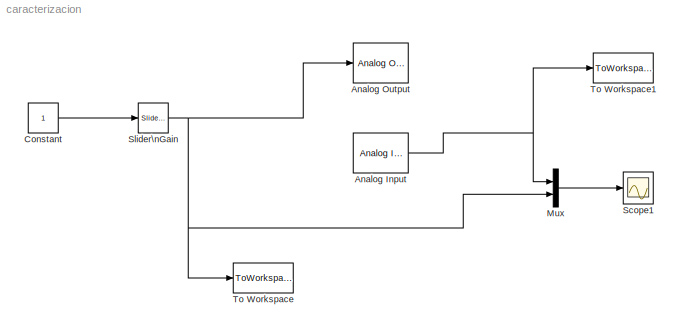
MODEL caracterizacion
KIND model
BLOCK [Reference] Analog Input  REF=rtwinlib/Analog Input
  AttributesFormatString = National Instruments\\nPCI-6221 [auto]
  Channels = 1
  DataType = 1
  DrvAddress = 4294967295
  DrvName = National_Instruments/PCI-6221
  DrvOptions = [1 0 0 0 0]
  MaxMissedTicks = 10
  Ports = [0, 1]
  RangeMode = 1
  SID = 2
  SampleTime = 0.01
  ShowMissedTicks = off
  SourceBlock = rtwinlib/Analog Input
  SourceType = RTWin Analog Input
  VoltRange = 2
  YieldWhenWaiting = off
BLOCK [Reference] Analog Output  REF=rtwinlib/Analog Output
  AttributesFormatString = National Instruments\\nPCI-6221 [auto]
  Channels = 1
  DrvAddress = 4294967295
  DrvName = National_Instruments/PCI-6221
  DrvOptions = [1 0 0 0 0]
  FinalValue = 5
  InitialValue = 0
  MaxMissedTicks = 10
  Ports = [1]
  RangeMode = 1
  SID = 1
  SampleTime = 0.01
  ShowMissedTicks = off
  SourceBlock = rtwinlib/Analog Output
  SourceType = RTWin Analog Output
  VoltRange = 1
  YieldWhenWaiting = off
BLOCK [Constant] Constant
  SID = 6
BLOCK [Mux] Mux
  DisplayOption = bar
  Inputs = 2
  Ports = [2, 1]
  SID = 7
BLOCK [Scope] Scope1
  DataFormat = StructureWithTime
  Floating = off
  LimitDataPoints = off
  NumInputPorts = 1
  Ports = [1]
  SID = 3
  SampleTime = 0
  ShowLegends = off
  TimeRange = 100
  YMax = 4.5
  YMin = 0
  ZoomMode = yonly
BLOCK [Reference] Slider\nGain  REF=simulink/Math\nOperations/Slider\nGain
  Ports = [1, 1]
  SID = 10
  SourceBlock = simulink/Math\nOperations/Slider\nGain
  SourceType = Slider Gain
  gain = 0
  high = 5
  low = 0
BLOCK [ToWorkspace] To Workspace
  MaxDataPoints = inf
  Ports = [1]
  SID = 4
  SampleTime = 0.01
  VariableName = Referencia
BLOCK [ToWorkspace] To Workspace1
  MaxDataPoints = inf
  Ports = [1]
  SID = 5
  SampleTime = 0.01
  VariableName = Sensor
NET Analog Input:1 -> Mux:1, To Workspace1:1
LINE Constant:1 -> Slider\nGain:1
LINE Mux:1 -> Scope1:1
NET Slider\nGain:1 -> Analog Output:1, Mux:2, To Workspace:1
note: NET lines group one-source signal fan-out (src -> all destinations, sorted); 1:1 wires keep LINE
